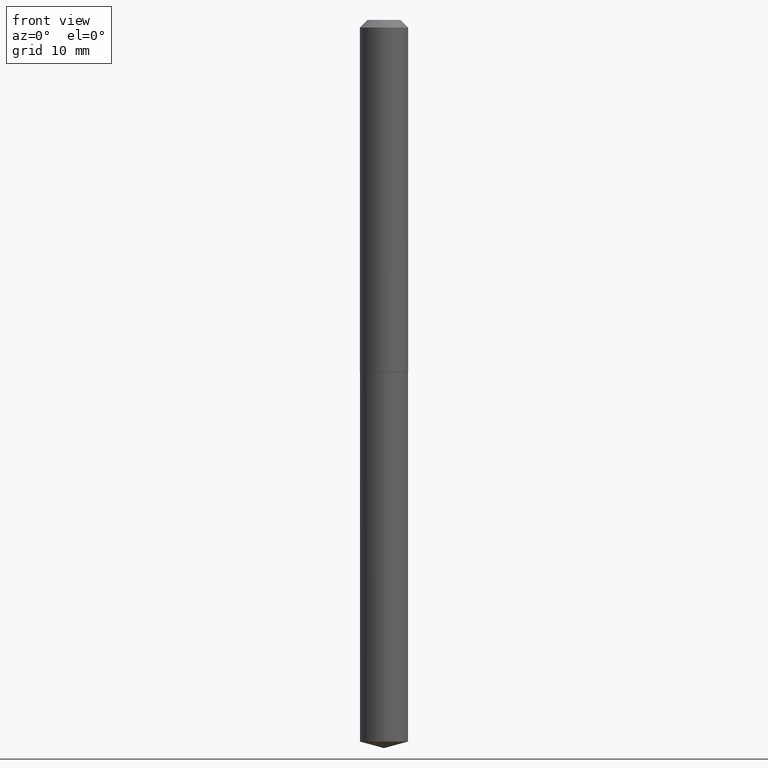
[diagram: clean part render]
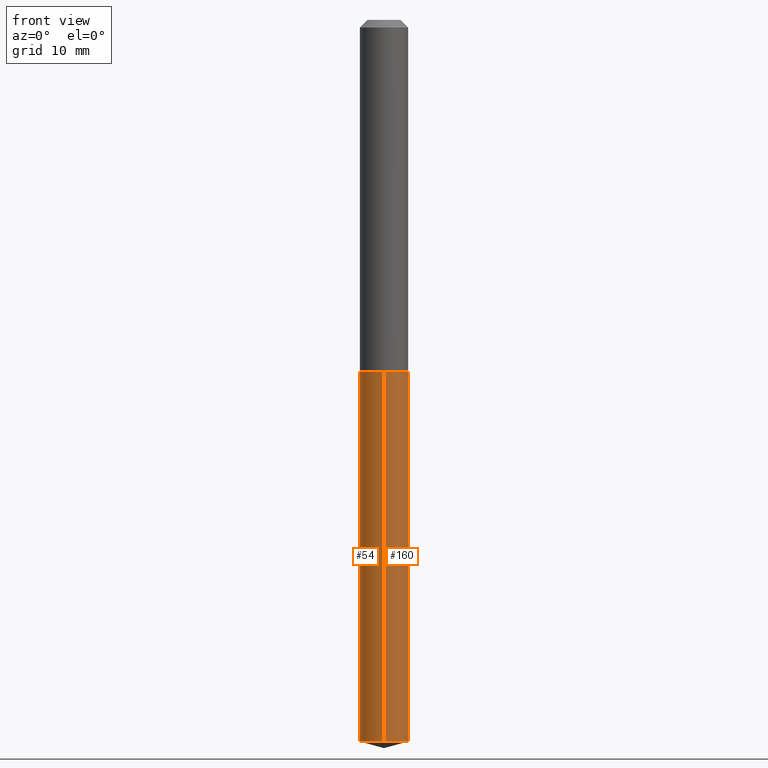
[diagram: same view with one multi-face feature highlighted, each face labeled with its STEP entity id]
A machine part, front view. The highlighted faces form ONE feature: a constant-radius fillet chain: 2 tangent blend faces with common blend radius 2.5273 mm. The faces share edges in the B-rep.
Their STEP definitions:
[1] entity #160 (Cylinder):
#25 = VERTEX_POINT ( 'NONE', #271 ) ;
#29 = CIRCLE ( 'NONE', #76, 0.09950000000000000511 ) ;
#43 = CARTESIAN_POINT ( 'NONE',  ( 3.543484300162263808E-29, -5.059156459983719291E-15, -1.449000000000000288 ) ) ;
#68 = CARTESIAN_POINT ( 'NONE',  ( 7.271220184248187710E-29, -1.038134024850855191E-14, -2.973339055353103610 ) ) ;
#76 = AXIS2_PLACEMENT_3D ( 'NONE', #68, #314, #167 ) ;
#80 = EDGE_LOOP ( 'NONE', ( #107, #83, #258, #85 ) ) ;
#81 = AXIS2_PLACEMENT_3D ( 'NONE', #43, #382, #375 ) ;
#83 = ORIENTED_EDGE ( 'NONE', *, *, #219, .T. ) ;
#85 = ORIENTED_EDGE ( 'NONE', *, *, #171, .F. ) ;
#87 = CARTESIAN_POINT ( 'NONE',  ( 7.069900220813350228E-16, 0.09949999999999495359, -1.449000000000000510 ) ) ;
#93 = DIRECTION ( 'NONE',  ( -2.445476858311170174E-29, 3.491469807740367050E-15, 1.000000000000000000 ) ) ;
#104 = EDGE_CURVE ( 'NONE', #154, #380, #29, .T. ) ;
#106 = FACE_OUTER_BOUND ( 'NONE', #80, .T. ) ;
#107 = ORIENTED_EDGE ( 'NONE', *, *, #104, .T. ) ;
#112 = EDGE_CURVE ( 'NONE', #362, #25, #332, .T. ) ;
#118 = LINE ( 'NONE', #87, #266 ) ;
#132 = CARTESIAN_POINT ( 'NONE',  ( 7.069900220813720006E-16, 0.09949999999998959677, -2.973339055353104055 ) ) ;
#154 = VERTEX_POINT ( 'NONE', #254 ) ;
#160 = ADVANCED_FACE ( 'NONE', ( #106 ), #321, .T. ) ;
#167 = DIRECTION ( 'NONE',  ( -6.982962677686266711E-15, -1.000000000000000000, 5.491151746058819933E-15 ) ) ;
#171 = EDGE_CURVE ( 'NONE', #154, #362, #353, .T. ) ;
#219 = EDGE_CURVE ( 'NONE', #380, #25, #118, .T. ) ;
#228 = CARTESIAN_POINT ( 'NONE',  ( -6.948047864297481652E-16, -0.09950000000000505662, -1.449000000000000066 ) ) ;
#241 = DIRECTION ( 'NONE',  ( -2.445476858311170454E-29, 3.491469807740367050E-15, 1.000000000000000000 ) ) ;
#254 = CARTESIAN_POINT ( 'NONE',  ( -6.948047864297106943E-16, -0.09950000000001035794, -2.973339055353103166 ) ) ;
#258 = ORIENTED_EDGE ( 'NONE', *, *, #112, .F. ) ;
#264 = DIRECTION ( 'NONE',  ( -2.445476858311170454E-29, 3.491469807740367050E-15, 1.000000000000000000 ) ) ;
#266 = VECTOR ( 'NONE', #241, 39.37007874015748143 ) ;
#271 = CARTESIAN_POINT ( 'NONE',  ( 7.069900220813727895E-16, 0.09949999999999496747, -1.449000000000000510 ) ) ;
#279 = DIRECTION ( 'NONE',  ( -6.982962677686266711E-15, -1.000000000000000000, 2.745575873029409967E-15 ) ) ;
#288 = CARTESIAN_POINT ( 'NONE',  ( -6.948047864297481652E-16, -0.09950000000000505662, -1.449000000000000066 ) ) ;
#289 = VECTOR ( 'NONE', #264, 39.37007874015748143 ) ;
#314 = DIRECTION ( 'NONE',  ( -2.445476858311170174E-29, 3.491469807740367050E-15, 1.000000000000000000 ) ) ;
#321 = CYLINDRICAL_SURFACE ( 'NONE', #81, 0.09950000000000000511 ) ;
#332 = CIRCLE ( 'NONE', #340, 0.09950000000000000511 ) ;
#340 = AXIS2_PLACEMENT_3D ( 'NONE', #364, #93, #279 ) ;
#353 = LINE ( 'NONE', #288, #289 ) ;
#362 = VERTEX_POINT ( 'NONE', #228 ) ;
#364 = CARTESIAN_POINT ( 'NONE',  ( 3.543484300162263808E-29, -5.059156459983719291E-15, -1.449000000000000288 ) ) ;
#375 = DIRECTION ( 'NONE',  ( -6.982962677686266711E-15, -1.000000000000000000, 2.745575873029409967E-15 ) ) ;
#380 = VERTEX_POINT ( 'NONE', #132 ) ;
#382 = DIRECTION ( 'NONE',  ( -2.445476858311170174E-29, 3.491469807740367050E-15, 1.000000000000000000 ) ) ;
[2] entity #54 (Cylinder):
#20 = CIRCLE ( 'NONE', #26, 0.09950000000000000511 ) ;
#25 = VERTEX_POINT ( 'NONE', #271 ) ;
#26 = AXIS2_PLACEMENT_3D ( 'NONE', #215, #388, #159 ) ;
#35 = ORIENTED_EDGE ( 'NONE', *, *, #171, .T. ) ;
#54 = ADVANCED_FACE ( 'NONE', ( #243 ), #130, .T. ) ;
#60 = DIRECTION ( 'NONE',  ( -6.982962677686266711E-15, -1.000000000000000000, 2.745575873029409967E-15 ) ) ;
#84 = ORIENTED_EDGE ( 'NONE', *, *, #227, .T. ) ;
#87 = CARTESIAN_POINT ( 'NONE',  ( 7.069900220813350228E-16, 0.09949999999999495359, -1.449000000000000510 ) ) ;
#94 = CARTESIAN_POINT ( 'NONE',  ( 3.543484300162263808E-29, -5.059156459983719291E-15, -1.449000000000000288 ) ) ;
#103 = AXIS2_PLACEMENT_3D ( 'NONE', #133, #367, #366 ) ;
#115 = CIRCLE ( 'NONE', #169, 0.09950000000000000511 ) ;
#118 = LINE ( 'NONE', #87, #266 ) ;
#130 = CYLINDRICAL_SURFACE ( 'NONE', #103, 0.09950000000000000511 ) ;
#132 = CARTESIAN_POINT ( 'NONE',  ( 7.069900220813720006E-16, 0.09949999999998959677, -2.973339055353104055 ) ) ;
#133 = CARTESIAN_POINT ( 'NONE',  ( 3.543484300162263808E-29, -5.059156459983719291E-15, -1.449000000000000288 ) ) ;
#154 = VERTEX_POINT ( 'NONE', #254 ) ;
#159 = DIRECTION ( 'NONE',  ( -6.982962677686266711E-15, -1.000000000000000000, 5.491151746058819933E-15 ) ) ;
#169 = AXIS2_PLACEMENT_3D ( 'NONE', #94, #276, #60 ) ;
#171 = EDGE_CURVE ( 'NONE', #154, #362, #353, .T. ) ;
#190 = ORIENTED_EDGE ( 'NONE', *, *, #374, .F. ) ;
#215 = CARTESIAN_POINT ( 'NONE',  ( 7.271220184248187710E-29, -1.038134024850855191E-14, -2.973339055353103610 ) ) ;
#219 = EDGE_CURVE ( 'NONE', #380, #25, #118, .T. ) ;
#222 = ORIENTED_EDGE ( 'NONE', *, *, #219, .F. ) ;
#227 = EDGE_CURVE ( 'NONE', #380, #154, #20, .T. ) ;
#228 = CARTESIAN_POINT ( 'NONE',  ( -6.948047864297481652E-16, -0.09950000000000505662, -1.449000000000000066 ) ) ;
#241 = DIRECTION ( 'NONE',  ( -2.445476858311170454E-29, 3.491469807740367050E-15, 1.000000000000000000 ) ) ;
#243 = FACE_OUTER_BOUND ( 'NONE', #315, .T. ) ;
#254 = CARTESIAN_POINT ( 'NONE',  ( -6.948047864297106943E-16, -0.09950000000001035794, -2.973339055353103166 ) ) ;
#264 = DIRECTION ( 'NONE',  ( -2.445476858311170454E-29, 3.491469807740367050E-15, 1.000000000000000000 ) ) ;
#266 = VECTOR ( 'NONE', #241, 39.37007874015748143 ) ;
#271 = CARTESIAN_POINT ( 'NONE',  ( 7.069900220813727895E-16, 0.09949999999999496747, -1.449000000000000510 ) ) ;
#276 = DIRECTION ( 'NONE',  ( -2.445476858311170174E-29, 3.491469807740367050E-15, 1.000000000000000000 ) ) ;
#288 = CARTESIAN_POINT ( 'NONE',  ( -6.948047864297481652E-16, -0.09950000000000505662, -1.449000000000000066 ) ) ;
#289 = VECTOR ( 'NONE', #264, 39.37007874015748143 ) ;
#315 = EDGE_LOOP ( 'NONE', ( #222, #84, #35, #190 ) ) ;
#353 = LINE ( 'NONE', #288, #289 ) ;
#362 = VERTEX_POINT ( 'NONE', #228 ) ;
#366 = DIRECTION ( 'NONE',  ( -6.982962677686266711E-15, -1.000000000000000000, 2.745575873029409967E-15 ) ) ;
#367 = DIRECTION ( 'NONE',  ( -2.445476858311170174E-29, 3.491469807740367050E-15, 1.000000000000000000 ) ) ;
#374 = EDGE_CURVE ( 'NONE', #25, #362, #115, .T. ) ;
#380 = VERTEX_POINT ( 'NONE', #132 ) ;
#388 = DIRECTION ( 'NONE',  ( -2.445476858311170174E-29, 3.491469807740367050E-15, 1.000000000000000000 ) ) ;